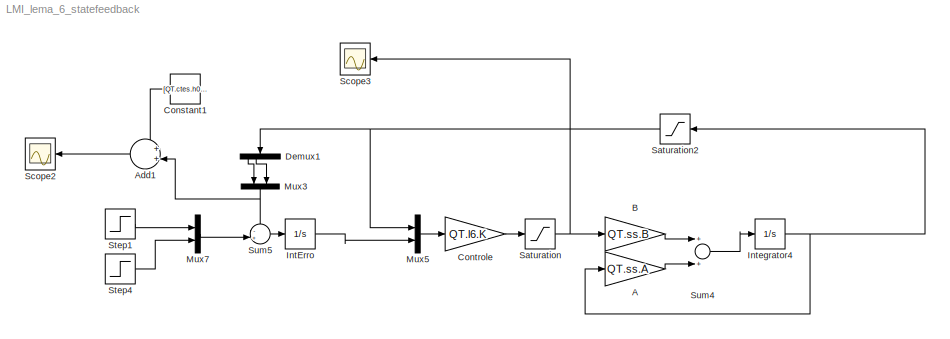
MODEL LMI_lema_6_statefeedback
KIND model
BLOCK [Gain] A
  Gain = QT.ss.A
  Multiplication = Matrix(K*u)
  OutDataTypeStr = Inherit: Inherit via internal rule
  ParamDataTypeStr = Inherit: Inherit via internal rule
  SID = 95
  SaturateOnIntegerOverflow = off
BLOCK [Sum] Add1
  IconShape = round
  InputSameDT = off
  Inputs = ++|
  OutDataTypeStr = Inherit: Inherit via internal rule
  Ports = [2, 1]
  SID = 142
  SaturateOnIntegerOverflow = off
BLOCK [Gain] B
  Gain = QT.ss.B
  Multiplication = Matrix(K*u)
  OutDataTypeStr = Inherit: Inherit via internal rule
  ParamDataTypeStr = Inherit: Inherit via internal rule
  SID = 96
  SaturateOnIntegerOverflow = off
BLOCK [Constant] Constant1
  SID = 143
  Value = [QT.ctes.h0(1) QT.ctes.h0(2)]
BLOCK [Gain] Controle
  Gain = QT.l6.K
  Multiplication = Matrix(K*u)
  OutDataTypeStr = Inherit: Inherit via internal rule
  ParamDataTypeStr = Inherit: Inherit via internal rule
  SID = 97
  SaturateOnIntegerOverflow = off
BLOCK [Demux] Demux1
  DisplayOption = bar
  Ports = [1, 4]
  SID = 94
BLOCK [Integrator] IntErro
  Ports = [1, 1]
  SID = 99
BLOCK [Integrator] Integrator4
  Ports = [1, 1]
  SID = 98
BLOCK [Mux] Mux3
  DisplayOption = bar
  Inputs = 2
  Ports = [2, 1]
  SID = 100
BLOCK [Mux] Mux5
  DisplayOption = bar
  Inputs = 2
  Ports = [2, 1]
  SID = 102
BLOCK [Mux] Mux7
  DisplayOption = bar
  Inputs = 2
  Ports = [2, 1]
  SID = 144
BLOCK [Saturate] Saturation
  InputPortMap = u0
  LowerLimit = -1.5
  Ports = [1, 1]
  SID = 120
  UpperLimit = +1.5
BLOCK [Saturate] Saturation2
  InputPortMap = u0
  LowerLimit = -5
  Ports = [1, 1]
  SID = 121
  UpperLimit = 10
BLOCK [Scope] Scope2
  DataFormat = StructureWithTime
  Floating = off
  LimitDataPoints = off
  NumInputPorts = 1
  Ports = [1]
  SID = 145
  SampleTime = 0
  SaveName = Simulado
  SaveToWorkspace = on
  TimeRange = 10
BLOCK [Scope] Scope3
  DataFormat = StructureWithTime
  Floating = off
  NumInputPorts = 1
  Ports = [1]
  SID = 110
  SampleTime = 0.3
  SaveName = ScopeData2
  TimeRange = 3.947368421052632
  YMax = 3.346153846153847
  YMin = 1.005827505827506
BLOCK [Step] Step1
  SID = 146
  SampleTime = 0
  Time = 300
BLOCK [Step] Step4
  SID = 147
  SampleTime = 0
  Time = 1100
BLOCK [Sum] Sum4
  InputSameDT = off
  OutDataTypeStr = Inherit: Inherit via internal rule
  Ports = [2, 1]
  SID = 106
  SaturateOnIntegerOverflow = off
BLOCK [Sum] Sum5
  IconShape = round
  InputSameDT = off
  Inputs = -+|
  OutDataTypeStr = Inherit: Inherit via internal rule
  Ports = [2, 1]
  SID = 107
  SaturateOnIntegerOverflow = off
LINE A:1 -> Sum4:2
LINE Add1:1 -> Scope2:1
LINE B:1 -> Sum4:1
LINE Constant1:1 -> Add1:1
LINE Controle:1 -> Saturation:1
LINE Demux1:1 -> Mux3:1
LINE Demux1:2 -> Mux3:2
LINE IntErro:1 -> Mux5:2
NET Integrator4:1 -> A:1, Saturation2:1
NET Mux3:1 -> Add1:2, Sum5:1
LINE Mux5:1 -> Controle:1
LINE Mux7:1 -> Sum5:2
NET Saturation2:1 -> Demux1:1, Mux5:1
NET Saturation:1 -> B:1, Scope3:1
LINE Step1:1 -> Mux7:1
LINE Step4:1 -> Mux7:2
LINE Sum4:1 -> Integrator4:1
LINE Sum5:1 -> IntErro:1
note: NET lines group one-source signal fan-out (src -> all destinations, sorted); 1:1 wires keep LINE
